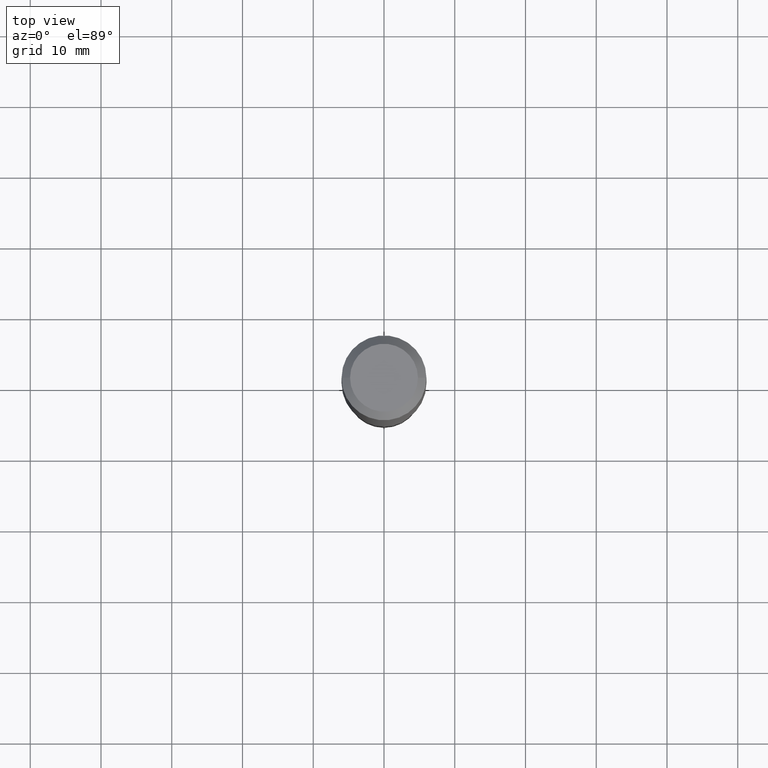
[diagram: clean part render]
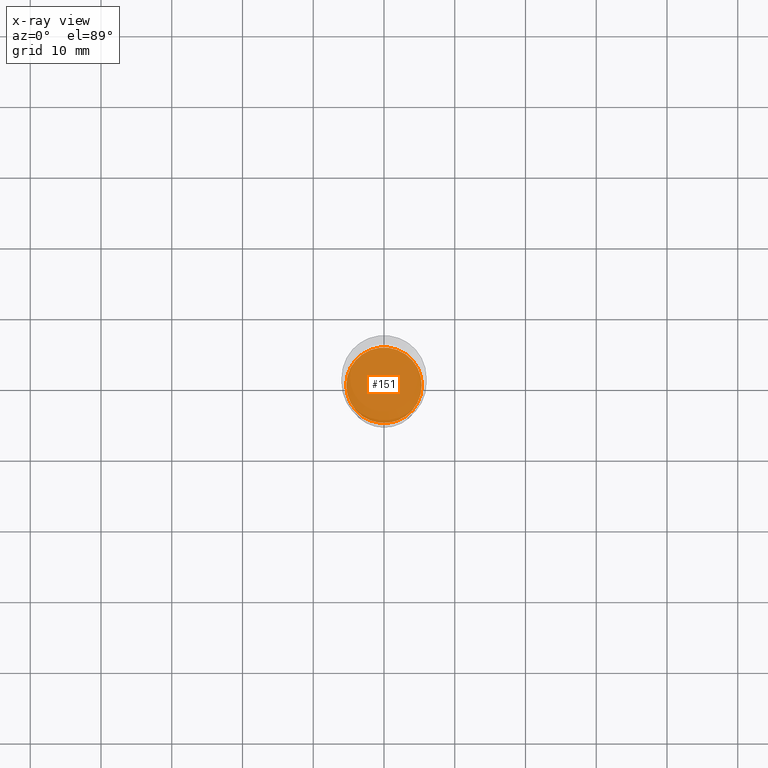
[diagram: x-ray — body ghosted, one internal face saturated and labeled with its STEP entity id]
A machine part, top view, then the same camera in x-ray: the body is ghosted and one INTERNAL B-rep face — a face not visible from any outside direction — is saturated and labeled: STEP entity #151.
In plain terms, the highlighted planar face has unit normal (-0, 0, 1).
Its self-contained STEP definition (entity closure, byte-faithful):
#9 = DIRECTION ( 'NONE',  ( 1.000000000000000000, -6.982962677686265922E-15, 4.876176775795935793E-29 ) ) ;
#25 = AXIS2_PLACEMENT_3D ( 'NONE', #54, #191, #190 ) ;
#39 = ORIENTED_EDGE ( 'NONE', *, *, #469, .F. ) ;
#54 = CARTESIAN_POINT ( 'NONE',  ( 5.969144809017300159E-29, -8.522356799982234543E-15, -2.440900000000000070 ) ) ;
#79 = EDGE_CURVE ( 'NONE', #403, #422, #124, .T. ) ;
#86 = DIRECTION ( 'NONE',  ( -2.438088387897960049E-29, 3.491481338843145188E-15, 1.000000000000000000 ) ) ;
#104 = DIRECTION ( 'NONE',  ( 1.000000000000000000, -6.982962677686268288E-15, 0.000000000000000000 ) ) ;
#124 = CIRCLE ( 'NONE', #268, 0.2101500000000000035 ) ;
#151 = ADVANCED_FACE ( 'NONE', ( #389 ), #156, .F. ) ;
#156 = PLANE ( 'NONE',  #314 ) ;
#190 = DIRECTION ( 'NONE',  ( 1.000000000000000000, -6.982962677686268288E-15, 0.000000000000000000 ) ) ;
#191 = DIRECTION ( 'NONE',  ( -2.445468806185136597E-29, 3.491481338843145583E-15, 1.000000000000000000 ) ) ;
#256 = CARTESIAN_POINT ( 'NONE',  ( 0.2101500000000000035, -9.989826406698003297E-15, -2.440900000000000070 ) ) ;
#268 = AXIS2_PLACEMENT_3D ( 'NONE', #346, #315, #104 ) ;
#275 = CARTESIAN_POINT ( 'NONE',  ( 3.753414775677078868E-29, -1.169540831924709376E-14, -2.440900000000000070 ) ) ;
#284 = CARTESIAN_POINT ( 'NONE',  ( -0.2101500000000000035, -7.026502013608272383E-15, -2.440900000000000070 ) ) ;
#310 = ORIENTED_EDGE ( 'NONE', *, *, #79, .F. ) ;
#314 = AXIS2_PLACEMENT_3D ( 'NONE', #275, #86, #9 ) ;
#315 = DIRECTION ( 'NONE',  ( -2.445468806185136597E-29, 3.491481338843145583E-15, 1.000000000000000000 ) ) ;
#346 = CARTESIAN_POINT ( 'NONE',  ( 5.969144809017300159E-29, -8.522356799982234543E-15, -2.440900000000000070 ) ) ;
#364 = EDGE_LOOP ( 'NONE', ( #39, #310 ) ) ;
#380 = CIRCLE ( 'NONE', #25, 0.2101500000000000035 ) ;
#389 = FACE_OUTER_BOUND ( 'NONE', #364, .T. ) ;
#403 = VERTEX_POINT ( 'NONE', #284 ) ;
#422 = VERTEX_POINT ( 'NONE', #256 ) ;
#469 = EDGE_CURVE ( 'NONE', #422, #403, #380, .T. ) ;